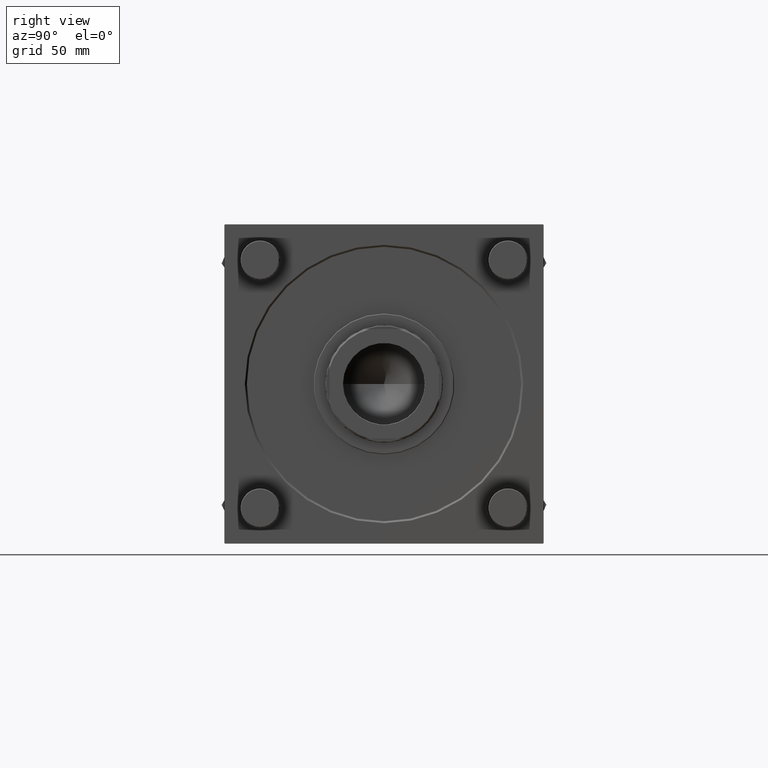
[diagram: clean part render]
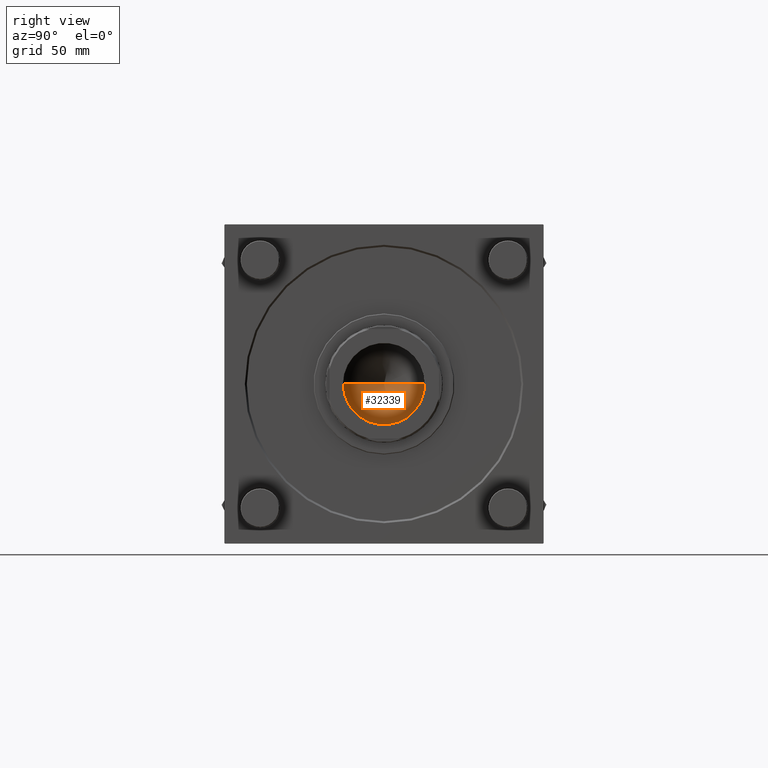
[diagram: same view with one face highlighted and labeled with its STEP entity id]
A machine part, right view. The second image highlights one B-rep face of the part: STEP entity #32339.
In plain terms, the highlighted conical surface has half-angle 59 deg.
Its self-contained STEP definition (entity closure, byte-faithful):
#1133 = CARTESIAN_POINT ( 'NONE',  ( 0.000000000000000000, 0.000000000000000000, 155.0000000000000000 ) ) ;
#2517 = CARTESIAN_POINT ( 'NONE',  ( 31.24999999999998579, 0.000000000000000000, 155.0000000000000000 ) ) ;
#4836 = VERTEX_POINT ( 'NONE', #35874 ) ;
#5781 = VECTOR ( 'NONE', #31567, 1000.000000000000000 ) ;
#6492 = DIRECTION ( 'NONE',  ( -0.8571673007021118895, 1.049727191138618079E-16, 0.5150380749100549327 ) ) ;
#8517 = CARTESIAN_POINT ( 'NONE',  ( 0.000000000000000000, 0.000000000000000000, 155.0000000000000000 ) ) ;
#14893 = CARTESIAN_POINT ( 'NONE',  ( -31.24999999999998579, 3.827021247335477324E-15, 155.0000000000000000 ) ) ;
#16790 = CONICAL_SURFACE ( 'NONE', #50990, 31.24999999999998579, 1.029744258676653645 ) ;
#16898 = DIRECTION ( 'NONE',  ( -0.000000000000000000, -0.000000000000000000, 1.000000000000000000 ) ) ;
#18470 = DIRECTION ( 'NONE',  ( -0.000000000000000000, -0.000000000000000000, 1.000000000000000000 ) ) ;
#21787 = DIRECTION ( 'NONE',  ( 1.000000000000000000, 0.000000000000000000, 0.000000000000000000 ) ) ;
#22342 = AXIS2_PLACEMENT_3D ( 'NONE', #8517, #16898, #21787 ) ;
#25787 = VECTOR ( 'NONE', #6492, 1000.000000000000000 ) ;
#25839 = EDGE_CURVE ( 'NONE', #40022, #4836, #33099, .T. ) ;
#27165 = FACE_OUTER_BOUND ( 'NONE', #39100, .T. ) ;
#27228 = CARTESIAN_POINT ( 'NONE',  ( 31.24999999999998579, 0.000000000000000000, 155.0000000000000000 ) ) ;
#29300 = VERTEX_POINT ( 'NONE', #2517 ) ;
#31567 = DIRECTION ( 'NONE',  ( 0.8571673007021118895, 0.000000000000000000, 0.5150380749100549327 ) ) ;
#32339 = ADVANCED_FACE ( 'NONE', ( #27165 ), #16790, .F. ) ;
#33099 = LINE ( 'NONE', #14893, #25787 ) ;
#33479 = EDGE_CURVE ( 'NONE', #29300, #4836, #40880, .T. ) ;
#33821 = EDGE_CURVE ( 'NONE', #40022, #29300, #49225, .T. ) ;
#35874 = CARTESIAN_POINT ( 'NONE',  ( -31.24999999999998579, 3.827021247335477324E-15, 155.0000000000000000 ) ) ;
#39100 = EDGE_LOOP ( 'NONE', ( #50789, #47155, #56368 ) ) ;
#40022 = VERTEX_POINT ( 'NONE', #50632 ) ;
#40479 = DIRECTION ( 'NONE',  ( 1.000000000000000000, 0.000000000000000000, 0.000000000000000000 ) ) ;
#40880 = CIRCLE ( 'NONE', #22342, 31.24999999999998579 ) ;
#47155 = ORIENTED_EDGE ( 'NONE', *, *, #33821, .T. ) ;
#49225 = LINE ( 'NONE', #27228, #5781 ) ;
#50632 = CARTESIAN_POINT ( 'NONE',  ( -2.278004804806631044E-14, 0.000000000000000000, 136.2231056553887356 ) ) ;
#50789 = ORIENTED_EDGE ( 'NONE', *, *, #25839, .F. ) ;
#50990 = AXIS2_PLACEMENT_3D ( 'NONE', #1133, #18470, #40479 ) ;
#56368 = ORIENTED_EDGE ( 'NONE', *, *, #33479, .T. ) ;